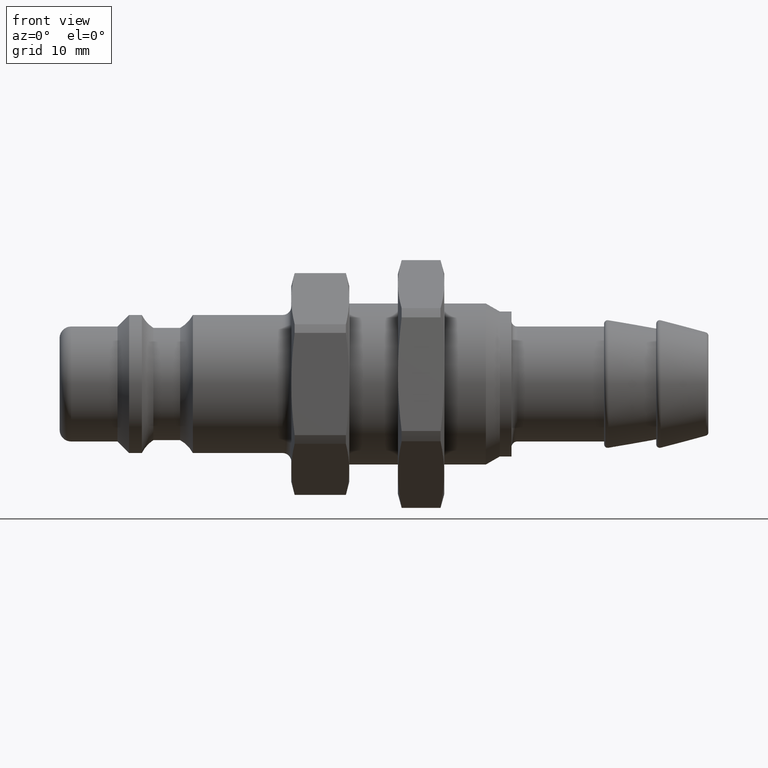
[diagram: clean part render]
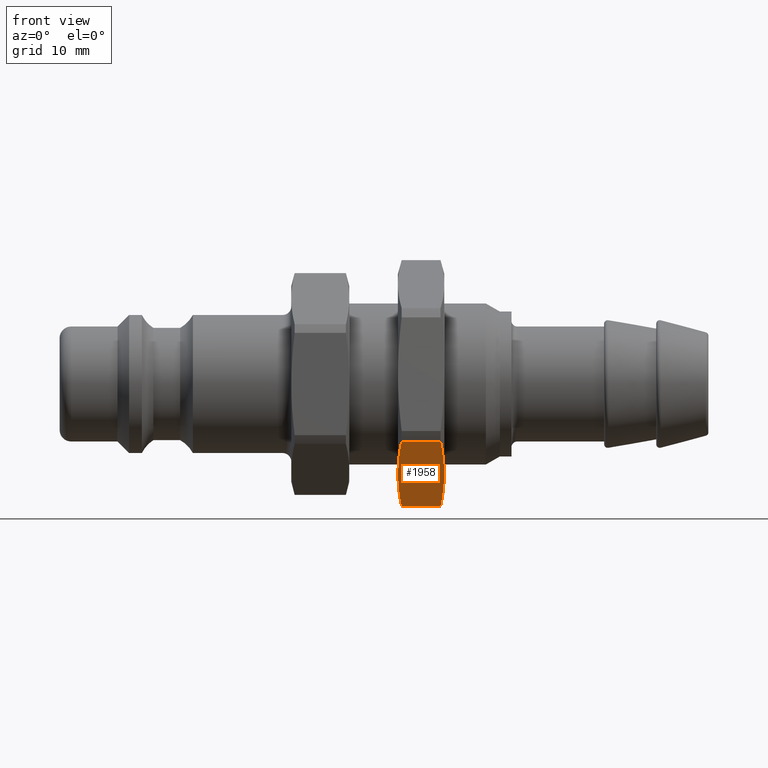
[diagram: same view with one face highlighted and labeled with its STEP entity id]
A machine part, front view. The second image highlights one B-rep face of the part: STEP entity #1958.
In plain terms, the highlighted planar face has unit normal (0, 0.5752, 0.818).
Its self-contained STEP definition (entity closure, byte-faithful):
#1674=CARTESIAN_POINT('',(0.0,-4.750000000000004,-8.227241335952165));
#1675=VERTEX_POINT('',#1674);
#1768=CARTESIAN_POINT('',(4.000000000000000,-4.750000000000004,-8.227241335952165));
#1769=VERTEX_POINT('',#1768);
#1879=CARTESIAN_POINT('',(4.659951927387788,-4.750000000000004,-8.227241335952165));
#1880=DIRECTION('',(0.0,0.500000000000000,0.866025403784438));
#1881=DIRECTION('',(0.0,-0.866025403784438,0.500000000000000));
#1882=AXIS2_PLACEMENT_3D('',#1879,#1880,#1881);
#1883=PLANE('',#1882);
#1884=CARTESIAN_POINT('',(0.321539030917348,-0.486198878934438,-10.688948060970400));
#1885=VERTEX_POINT('',#1884);
#1886=CARTESIAN_POINT('',(0.321539030917348,-0.486198878934437,-10.688948060970402));
#1887=CARTESIAN_POINT('',(3.686287E-017,-2.744746997518672,-9.384974696728069));
#1888=CARTESIAN_POINT('',(-1.040834E-016,-4.750000000000004,-8.227241335952165));
#1896=(BOUNDED_CURVE()B_SPLINE_CURVE(2,(#1886,#1887,#1888),.UNSPECIFIED.,.F.,.U.)B_SPLINE_CURVE_WITH_KNOTS((3,3),(0.0,0.493628243022414),.UNSPECIFIED.)CURVE()GEOMETRIC_REPRESENTATION_ITEM()RATIONAL_B_SPLINE_CURVE((1.0,1.031095482841832,1.0))REPRESENTATION_ITEM(''));
#1897=EDGE_CURVE('',#1885,#1675,#1896,.T.);
#1898=ORIENTED_EDGE('',*,*,#1897,.F.);
#1899=CARTESIAN_POINT('',(3.678460969082653,-0.486198878934438,-10.688948060970400));
#1900=VERTEX_POINT('',#1899);
#1901=CARTESIAN_POINT('',(3.678460969082653,-0.486198878934438,-10.688948060970400));
#1902=DIRECTION('',(-1.0,0.0,0.0));
#1903=VECTOR('',#1902,3.356921938165305);
#1904=LINE('',#1901,#1903);
#1905=EDGE_CURVE('',#1900,#1885,#1904,.T.);
#1906=ORIENTED_EDGE('',*,*,#1905,.F.);
#1907=CARTESIAN_POINT('',(4.000000000000000,-4.750000000000004,-8.227241335952165));
#1908=CARTESIAN_POINT('',(4.000000000000002,-2.744746997518658,-9.384974696728076));
#1909=CARTESIAN_POINT('',(3.678460969082653,-0.486198878934438,-10.688948060970400));
#1917=(BOUNDED_CURVE()B_SPLINE_CURVE(2,(#1907,#1908,#1909),.UNSPECIFIED.,.F.,.U.)B_SPLINE_CURVE_WITH_KNOTS((3,3),(0.493628243022414,0.987256486044828),.UNSPECIFIED.)CURVE()GEOMETRIC_REPRESENTATION_ITEM()RATIONAL_B_SPLINE_CURVE((1.0,1.031095482841835,1.0))REPRESENTATION_ITEM(''));
#1918=EDGE_CURVE('',#1769,#1900,#1917,.T.);
#1919=ORIENTED_EDGE('',*,*,#1918,.F.);
#1920=CARTESIAN_POINT('',(3.678460969082653,-9.013801121065573,-5.765534610933929));
#1921=VERTEX_POINT('',#1920);
#1922=CARTESIAN_POINT('',(3.678460969082653,-9.013801121065567,-5.765534610933932));
#1923=CARTESIAN_POINT('',(3.999999999999998,-6.755253002481353,-7.069507975176252));
#1924=CARTESIAN_POINT('',(4.000000000000000,-4.750000000000004,-8.227241335952165));
#1932=(BOUNDED_CURVE()B_SPLINE_CURVE(2,(#1922,#1923,#1924),.UNSPECIFIED.,.F.,.U.)B_SPLINE_CURVE_WITH_KNOTS((3,3),(0.0,0.493628243022414),.UNSPECIFIED.)CURVE()GEOMETRIC_REPRESENTATION_ITEM()RATIONAL_B_SPLINE_CURVE((1.0,1.031095482841849,1.0))REPRESENTATION_ITEM(''));
#1933=EDGE_CURVE('',#1921,#1769,#1932,.T.);
#1934=ORIENTED_EDGE('',*,*,#1933,.F.);
#1935=CARTESIAN_POINT('',(0.321539030917348,-9.013801121065573,-5.765534610933929));
#1936=VERTEX_POINT('',#1935);
#1937=CARTESIAN_POINT('',(0.321539030917348,-9.013801121065573,-5.765534610933929));
#1938=DIRECTION('',(1.0,0.0,0.0));
#1939=VECTOR('',#1938,3.356921938165305);
#1940=LINE('',#1937,#1939);
#1941=EDGE_CURVE('',#1936,#1921,#1940,.T.);
#1942=ORIENTED_EDGE('',*,*,#1941,.F.);
#1943=CARTESIAN_POINT('',(-1.040834E-016,-4.750000000000004,-8.227241335952165));
#1944=CARTESIAN_POINT('',(-2.450297E-016,-6.755253002481336,-7.069507975176260));
#1945=CARTESIAN_POINT('',(0.321539030917348,-9.013801121065573,-5.765534610933928));
#1953=(BOUNDED_CURVE()B_SPLINE_CURVE(2,(#1943,#1944,#1945),.UNSPECIFIED.,.F.,.U.)B_SPLINE_CURVE_WITH_KNOTS((3,3),(0.493628243022414,0.987256486044829),.UNSPECIFIED.)CURVE()GEOMETRIC_REPRESENTATION_ITEM()RATIONAL_B_SPLINE_CURVE((1.0,1.031095482841832,1.0))REPRESENTATION_ITEM(''));
#1954=EDGE_CURVE('',#1675,#1936,#1953,.T.);
#1955=ORIENTED_EDGE('',*,*,#1954,.F.);
#1956=EDGE_LOOP('',(#1898,#1906,#1919,#1934,#1942,#1955));
#1957=FACE_OUTER_BOUND('',#1956,.T.);
#1958=ADVANCED_FACE('',(#1957),#1883,.F.);